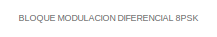
[diagram: root canvas - part 1/4, top center region]
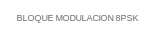
[diagram: root canvas - part 2/4, top left region]
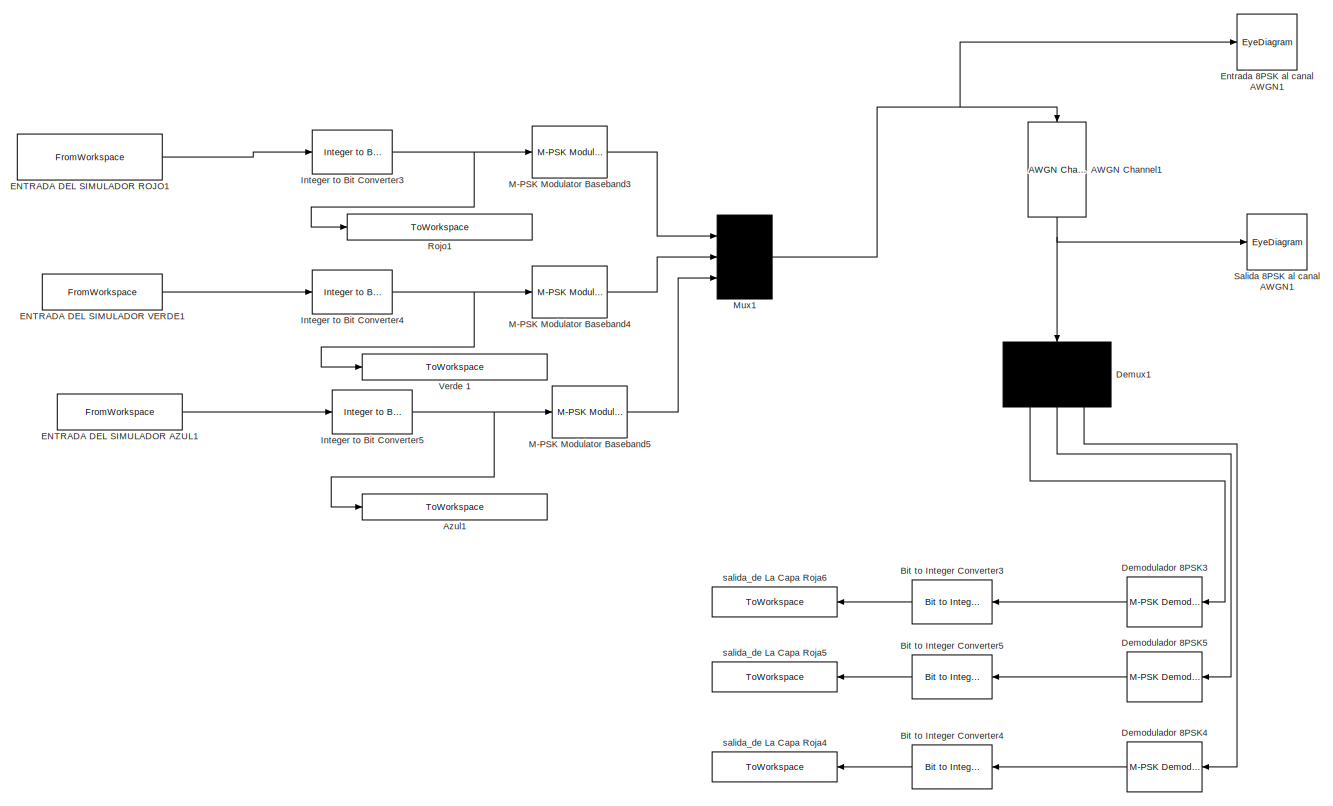
[diagram: root canvas - part 3/4, left side, full height]
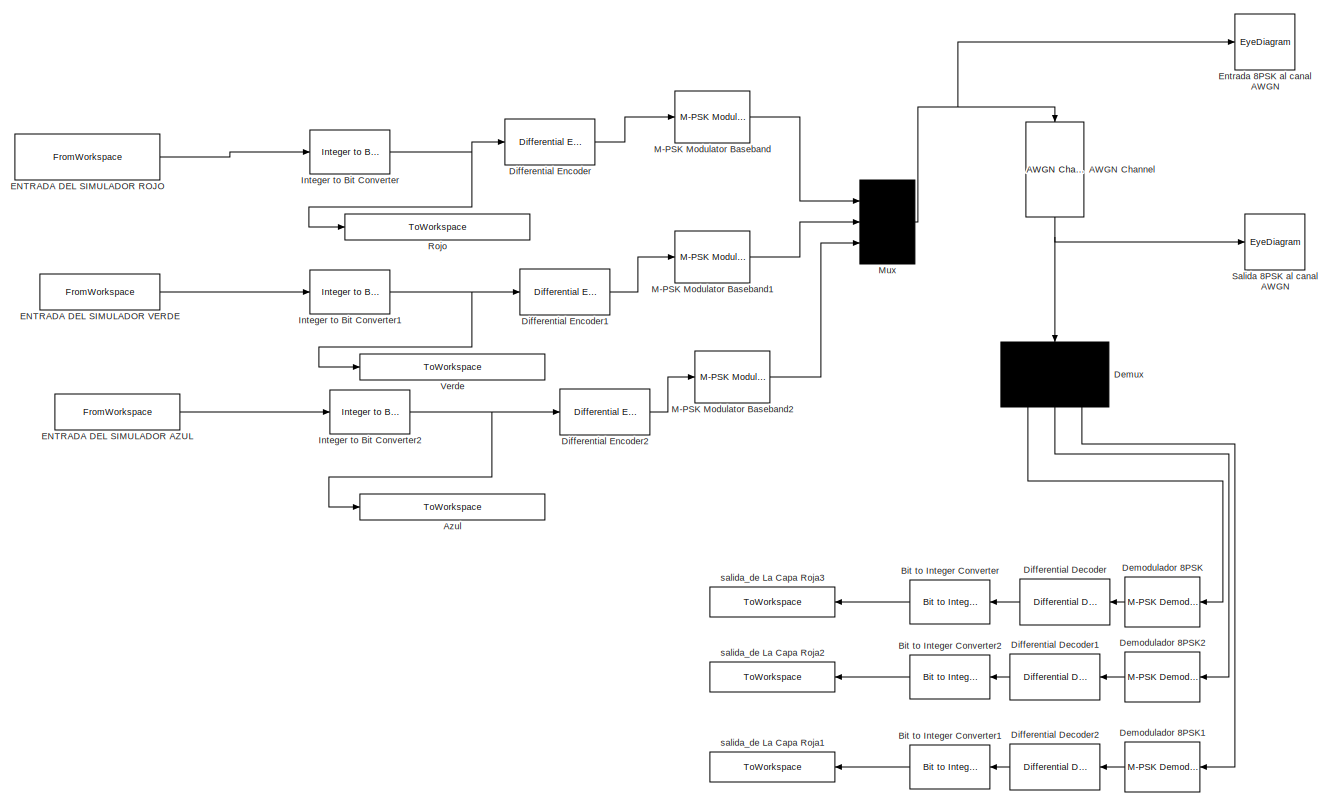
[diagram: root canvas - part 4/4, right side, full height]
MODEL slx_824df2cab368
KIND model
CONFIG AbsTol = auto
CONFIG FixedStep = auto
CONFIG MaxStep = auto
CONFIG MinStep = auto
CONFIG RelTol = 1e-3
CONFIG SampleTimeConstraint = Unconstrained
CONFIG Solver = VariableStepAuto
CONFIG SolverMode = Auto
CONFIG SolverName = VariableStepAuto
CONFIG StartTime = 0.0
CONFIG StopTime = 420800
BLOCK [Reference] AWGN Channel  REF=commchan3/AWGN
Channel
  Ports = [1, 1]
  SourceBlock = commchan3/AWGN\nChannel
  SourceType = AWGN Channel
  UserDataPersistent = on
BLOCK [Reference] AWGN Channel1  REF=commchan3/AWGN
Channel
  Ports = [1, 1]
  SourceBlock = commchan3/AWGN\nChannel
  SourceType = AWGN Channel
  UserDataPersistent = on
BLOCK [ToWorkspace] Azul
  FixptAsFi = on
  MaxDataPoints = inf
  Ports = [1]
  SampleTime = -1
  Save2DSignal = 2-D array (concatenate along first dimension)
  VariableName = Salida_Cuantificador_Azul
BLOCK [ToWorkspace] Azul1
  FixptAsFi = on
  MaxDataPoints = inf
  Ports = [1]
  SampleTime = -1
  Save2DSignal = 2-D array (concatenate along first dimension)
  VariableName = Salida_Cuantificador_Azul1
BLOCK [Reference] Bit to Integer Converter  REF=commutil2/Bit to Integer
Converter
  Ports = [1, 1]
  SourceBlock = commutil2/Bit to Integer\nConverter
  SourceType = Bit to Integer Converter
BLOCK [Reference] Bit to Integer Converter1  REF=commutil2/Bit to Integer
Converter
  Ports = [1, 1]
  SourceBlock = commutil2/Bit to Integer\nConverter
  SourceType = Bit to Integer Converter
BLOCK [Reference] Bit to Integer Converter2  REF=commutil2/Bit to Integer
Converter
  Ports = [1, 1]
  SourceBlock = commutil2/Bit to Integer\nConverter
  SourceType = Bit to Integer Converter
BLOCK [Reference] Bit to Integer Converter3  REF=commutil2/Bit to Integer
Converter
  Ports = [1, 1]
  SourceBlock = commutil2/Bit to Integer\nConverter
  SourceType = Bit to Integer Converter
BLOCK [Reference] Bit to Integer Converter4  REF=commutil2/Bit to Integer
Converter
  Ports = [1, 1]
  SourceBlock = commutil2/Bit to Integer\nConverter
  SourceType = Bit to Integer Converter
BLOCK [Reference] Bit to Integer Converter5  REF=commutil2/Bit to Integer
Converter
  Ports = [1, 1]
  SourceBlock = commutil2/Bit to Integer\nConverter
  SourceType = Bit to Integer Converter
BLOCK [Reference] Demodulador 8PSK  REF=commdigbbndpm3/M-PSK
Demodulator
Baseband
  Ports = [1, 1]
  SourceBlock = commdigbbndpm3/M-PSK\nDemodulator\nBaseband
  SourceType = M-PSK Demodulator Baseband
BLOCK [Reference] Demodulador 8PSK1  REF=commdigbbndpm3/M-PSK
Demodulator
Baseband
  Ports = [1, 1]
  SourceBlock = commdigbbndpm3/M-PSK\nDemodulator\nBaseband
  SourceType = M-PSK Demodulator Baseband
BLOCK [Reference] Demodulador 8PSK2  REF=commdigbbndpm3/M-PSK
Demodulator
Baseband
  Ports = [1, 1]
  SourceBlock = commdigbbndpm3/M-PSK\nDemodulator\nBaseband
  SourceType = M-PSK Demodulator Baseband
BLOCK [Reference] Demodulador 8PSK3  REF=commdigbbndpm3/M-PSK
Demodulator
Baseband
  Ports = [1, 1]
  SourceBlock = commdigbbndpm3/M-PSK\nDemodulator\nBaseband
  SourceType = M-PSK Demodulator Baseband
BLOCK [Reference] Demodulador 8PSK4  REF=commdigbbndpm3/M-PSK
Demodulator
Baseband
  Ports = [1, 1]
  SourceBlock = commdigbbndpm3/M-PSK\nDemodulator\nBaseband
  SourceType = M-PSK Demodulator Baseband
BLOCK [Reference] Demodulador 8PSK5  REF=commdigbbndpm3/M-PSK
Demodulator
Baseband
  Ports = [1, 1]
  SourceBlock = commdigbbndpm3/M-PSK\nDemodulator\nBaseband
  SourceType = M-PSK Demodulator Baseband
BLOCK [Demux] Demux
  Outputs = 3
  Ports = [1, 3]
BLOCK [Demux] Demux1
  Outputs = 3
  Ports = [1, 3]
BLOCK [Reference] Differential Decoder  REF=commsrccod2/Differential
Decoder
  Ports = [1, 1]
  SourceBlock = commsrccod2/Differential\nDecoder
  SourceType = Differential Decoder
BLOCK [Reference] Differential Decoder1  REF=commsrccod2/Differential
Decoder
  Ports = [1, 1]
  SourceBlock = commsrccod2/Differential\nDecoder
  SourceType = Differential Decoder
BLOCK [Reference] Differential Decoder2  REF=commsrccod2/Differential
Decoder
  Ports = [1, 1]
  SourceBlock = commsrccod2/Differential\nDecoder
  SourceType = Differential Decoder
BLOCK [Reference] Differential Encoder  REF=commsrccod2/Differential
Encoder
  Ports = [1, 1]
  SourceBlock = commsrccod2/Differential\nEncoder
  SourceType = Differential Encoder
BLOCK [Reference] Differential Encoder1  REF=commsrccod2/Differential
Encoder
  Ports = [1, 1]
  SourceBlock = commsrccod2/Differential\nEncoder
  SourceType = Differential Encoder
BLOCK [Reference] Differential Encoder2  REF=commsrccod2/Differential
Encoder
  Ports = [1, 1]
  SourceBlock = commsrccod2/Differential\nEncoder
  SourceType = Differential Encoder
BLOCK [FromWorkspace] ENTRADA DEL SIMULADOR AZUL
  OutputAfterFinalValue = Holding final value
  SampleTime = 1
  VariableName = Imagen_BEntrada
BLOCK [FromWorkspace] ENTRADA DEL SIMULADOR AZUL1
  OutputAfterFinalValue = Holding final value
  SampleTime = 1
  VariableName = Imagen_BEntrada
BLOCK [FromWorkspace] ENTRADA DEL SIMULADOR ROJO
  OutputAfterFinalValue = Holding final value
  SampleTime = 1
  VariableName = Imagen_REntrada
BLOCK [FromWorkspace] ENTRADA DEL SIMULADOR ROJO1
  OutputAfterFinalValue = Holding final value
  SampleTime = 1
  VariableName = Imagen_REntrada
BLOCK [FromWorkspace] ENTRADA DEL SIMULADOR VERDE
  OutputAfterFinalValue = Holding final value
  SampleTime = 1
  VariableName = Imagen_GEntrada
BLOCK [FromWorkspace] ENTRADA DEL SIMULADOR VERDE1
  OutputAfterFinalValue = Holding final value
  SampleTime = 1
  VariableName = Imagen_GEntrada
BLOCK [EyeDiagram] Entrada 8PSK al canal AWGN
  Ports = [1]
  ScopeSpecificationString = comm.scopes.EyeDiagramBlockCfg('CurrentConfiguration', extmgr.ConfigurationSet(extmgr.Configuration('Core','General UI',true),extmgr.Configuration('Core','Source UI',true),extmgr.Configuration('Sources','WiredSimulink',true),extmgr.Configuration('Sources','Simulink',false),extmgr.Configuration('Sources','File',false),extmgr.Configuration('Sources','Workspace',false),extmgr.Configuration('Sources',...<+1067ch>
BLOCK [EyeDiagram] Entrada 8PSK al canal AWGN1
  Ports = [1]
  ScopeSpecificationString = comm.scopes.EyeDiagramBlockCfg('CurrentConfiguration', extmgr.ConfigurationSet(extmgr.Configuration('Core','General UI',true),extmgr.Configuration('Core','Source UI',true),extmgr.Configuration('Sources','WiredSimulink',true),extmgr.Configuration('Sources','Simulink',false),extmgr.Configuration('Sources','File',false),extmgr.Configuration('Sources','Workspace',false),extmgr.Configuration('Sources',...<+1067ch>
BLOCK [Reference] Integer to Bit Converter  REF=commutil2/Integer to Bit
Converter
  Ports = [1, 1]
  SourceBlock = commutil2/Integer to Bit\nConverter
  SourceType = Integer to Bit Converter
BLOCK [Reference] Integer to Bit Converter1  REF=commutil2/Integer to Bit
Converter
  Ports = [1, 1]
  SourceBlock = commutil2/Integer to Bit\nConverter
  SourceType = Integer to Bit Converter
BLOCK [Reference] Integer to Bit Converter2  REF=commutil2/Integer to Bit
Converter
  Ports = [1, 1]
  SourceBlock = commutil2/Integer to Bit\nConverter
  SourceType = Integer to Bit Converter
BLOCK [Reference] Integer to Bit Converter3  REF=commutil2/Integer to Bit
Converter
  Ports = [1, 1]
  SourceBlock = commutil2/Integer to Bit\nConverter
  SourceType = Integer to Bit Converter
BLOCK [Reference] Integer to Bit Converter4  REF=commutil2/Integer to Bit
Converter
  Ports = [1, 1]
  SourceBlock = commutil2/Integer to Bit\nConverter
  SourceType = Integer to Bit Converter
BLOCK [Reference] Integer to Bit Converter5  REF=commutil2/Integer to Bit
Converter
  Ports = [1, 1]
  SourceBlock = commutil2/Integer to Bit\nConverter
  SourceType = Integer to Bit Converter
BLOCK [Reference] M-PSK Modulator Baseband  REF=commdigbbndpm3/M-PSK
Modulator
Baseband
  Ports = [1, 1]
  SourceBlock = commdigbbndpm3/M-PSK\nModulator\nBaseband
  SourceType = M-PSK Modulator Baseband
BLOCK [Reference] M-PSK Modulator Baseband1  REF=commdigbbndpm3/M-PSK
Modulator
Baseband
  Ports = [1, 1]
  SourceBlock = commdigbbndpm3/M-PSK\nModulator\nBaseband
  SourceType = M-PSK Modulator Baseband
BLOCK [Reference] M-PSK Modulator Baseband2  REF=commdigbbndpm3/M-PSK
Modulator
Baseband
  Ports = [1, 1]
  SourceBlock = commdigbbndpm3/M-PSK\nModulator\nBaseband
  SourceType = M-PSK Modulator Baseband
BLOCK [Reference] M-PSK Modulator Baseband3  REF=commdigbbndpm3/M-PSK
Modulator
Baseband
  Ports = [1, 1]
  SourceBlock = commdigbbndpm3/M-PSK\nModulator\nBaseband
  SourceType = M-PSK Modulator Baseband
BLOCK [Reference] M-PSK Modulator Baseband4  REF=commdigbbndpm3/M-PSK
Modulator
Baseband
  Ports = [1, 1]
  SourceBlock = commdigbbndpm3/M-PSK\nModulator\nBaseband
  SourceType = M-PSK Modulator Baseband
BLOCK [Reference] M-PSK Modulator Baseband5  REF=commdigbbndpm3/M-PSK
Modulator
Baseband
  Ports = [1, 1]
  SourceBlock = commdigbbndpm3/M-PSK\nModulator\nBaseband
  SourceType = M-PSK Modulator Baseband
BLOCK [Mux] Mux
  DisplayOption = signals
  Inputs = 3
  Ports = [3, 1]
BLOCK [Mux] Mux1
  DisplayOption = signals
  Inputs = 3
  Ports = [3, 1]
BLOCK [ToWorkspace] Rojo
  FixptAsFi = on
  MaxDataPoints = inf
  Ports = [1]
  SampleTime = -1
  Save2DSignal = 2-D array (concatenate along first dimension)
  VariableName = Salida_Cuantificador_Rojo
BLOCK [ToWorkspace] Rojo1
  FixptAsFi = on
  MaxDataPoints = inf
  Ports = [1]
  SampleTime = -1
  Save2DSignal = 2-D array (concatenate along first dimension)
  VariableName = Salida_Cuantificador_Rojo1
BLOCK [EyeDiagram] Salida 8PSK al canal AWGN
  Ports = [1]
  ScopeSpecificationString = comm.scopes.EyeDiagramBlockCfg('CurrentConfiguration', extmgr.ConfigurationSet(extmgr.Configuration('Core','General UI',true),extmgr.Configuration('Core','Source UI',true),extmgr.Configuration('Sources','WiredSimulink',true),extmgr.Configuration('Sources','Simulink',false),extmgr.Configuration('Sources','File',false),extmgr.Configuration('Sources','Workspace',false),extmgr.Configuration('Sources',...<+1066ch>
BLOCK [EyeDiagram] Salida 8PSK al canal AWGN1
  Ports = [1]
  ScopeSpecificationString = comm.scopes.EyeDiagramBlockCfg('CurrentConfiguration', extmgr.ConfigurationSet(extmgr.Configuration('Core','General UI',true),extmgr.Configuration('Core','Source UI',true),extmgr.Configuration('Sources','WiredSimulink',true),extmgr.Configuration('Sources','Simulink',false),extmgr.Configuration('Sources','File',false),extmgr.Configuration('Sources','Workspace',false),extmgr.Configuration('Sources',...<+1066ch>
BLOCK [ToWorkspace] Verde 
  FixptAsFi = on
  MaxDataPoints = inf
  Ports = [1]
  SampleTime = -1
  Save2DSignal = 2-D array (concatenate along first dimension)
  VariableName = Salida_Cuantificador_Verde
BLOCK [ToWorkspace] Verde 1
  FixptAsFi = on
  MaxDataPoints = inf
  Ports = [1]
  SampleTime = -1
  Save2DSignal = 2-D array (concatenate along first dimension)
  VariableName = Salida_Cuantificador_Verde1
BLOCK [ToWorkspace] salida_de La Capa Roja1
  FixptAsFi = on
  MaxDataPoints = inf
  Ports = [1]
  SampleTime = 1
  Save2DSignal = 2-D array (concatenate along first dimension)
  VariableName = IR_DIFF_65_PSKB
BLOCK [ToWorkspace] salida_de La Capa Roja2
  FixptAsFi = on
  MaxDataPoints = inf
  Ports = [1]
  SampleTime = 1
  Save2DSignal = 2-D array (concatenate along first dimension)
  VariableName = IR_DIFF_65_PSKG
BLOCK [ToWorkspace] salida_de La Capa Roja3
  FixptAsFi = on
  MaxDataPoints = inf
  Ports = [1]
  SampleTime = 1
  Save2DSignal = 2-D array (concatenate along first dimension)
  VariableName = IR_DIFF_65_PSKR
BLOCK [ToWorkspace] salida_de La Capa Roja4
  FixptAsFi = on
  MaxDataPoints = inf
  Ports = [1]
  SampleTime = 1
  Save2DSignal = 2-D array (concatenate along first dimension)
  VariableName = IR_65_PSKB
BLOCK [ToWorkspace] salida_de La Capa Roja5
  FixptAsFi = on
  MaxDataPoints = inf
  Ports = [1]
  SampleTime = 1
  Save2DSignal = 2-D array (concatenate along first dimension)
  VariableName = IR_65_PSKG
BLOCK [ToWorkspace] salida_de La Capa Roja6
  FixptAsFi = on
  MaxDataPoints = inf
  Ports = [1]
  SampleTime = 1
  Save2DSignal = 2-D array (concatenate along first dimension)
  VariableName = IR_65_PSKR
ANNOTATION (root): BLOQUE MODULACION DIFERENCIAL 8PSK
ANNOTATION (root): BLOQUE MODULACION 8PSK
NET AWGN Channel1:1 -> Demux1:1, Salida 8PSK al canal AWGN1:1
NET AWGN Channel:1 -> Demux:1, Salida 8PSK al canal AWGN:1
LINE Bit to Integer Converter1:1 -> salida_de La Capa Roja1:1
LINE Bit to Integer Converter2:1 -> salida_de La Capa Roja2:1
LINE Bit to Integer Converter3:1 -> salida_de La Capa Roja6:1
LINE Bit to Integer Converter4:1 -> salida_de La Capa Roja4:1
LINE Bit to Integer Converter5:1 -> salida_de La Capa Roja5:1
LINE Bit to Integer Converter:1 -> salida_de La Capa Roja3:1
LINE Demodulador 8PSK1:1 -> Differential Decoder2:1
LINE Demodulador 8PSK2:1 -> Differential Decoder1:1
LINE Demodulador 8PSK3:1 -> Bit to Integer Converter3:1
LINE Demodulador 8PSK4:1 -> Bit to Integer Converter4:1
LINE Demodulador 8PSK5:1 -> Bit to Integer Converter5:1
LINE Demodulador 8PSK:1 -> Differential Decoder:1
LINE Demux1:1 -> Demodulador 8PSK3:1
LINE Demux1:2 -> Demodulador 8PSK5:1
LINE Demux1:3 -> Demodulador 8PSK4:1
LINE Demux:1 -> Demodulador 8PSK:1
LINE Demux:2 -> Demodulador 8PSK2:1
LINE Demux:3 -> Demodulador 8PSK1:1
LINE Differential Decoder1:1 -> Bit to Integer Converter2:1
LINE Differential Decoder2:1 -> Bit to Integer Converter1:1
LINE Differential Decoder:1 -> Bit to Integer Converter:1
LINE Differential Encoder1:1 -> M-PSK Modulator Baseband1:1
LINE Differential Encoder2:1 -> M-PSK Modulator Baseband2:1
LINE Differential Encoder:1 -> M-PSK Modulator Baseband:1
LINE ENTRADA DEL SIMULADOR AZUL1:1 -> Integer to Bit Converter5:1
LINE ENTRADA DEL SIMULADOR AZUL:1 -> Integer to Bit Converter2:1
LINE ENTRADA DEL SIMULADOR ROJO1:1 -> Integer to Bit Converter3:1
LINE ENTRADA DEL SIMULADOR ROJO:1 -> Integer to Bit Converter:1
LINE ENTRADA DEL SIMULADOR VERDE1:1 -> Integer to Bit Converter4:1
LINE ENTRADA DEL SIMULADOR VERDE:1 -> Integer to Bit Converter1:1
NET Integer to Bit Converter1:1 -> Differential Encoder1:1, Verde :1
NET Integer to Bit Converter2:1 -> Azul:1, Differential Encoder2:1
NET Integer to Bit Converter3:1 -> M-PSK Modulator Baseband3:1, Rojo1:1
NET Integer to Bit Converter4:1 -> M-PSK Modulator Baseband4:1, Verde 1:1
NET Integer to Bit Converter5:1 -> Azul1:1, M-PSK Modulator Baseband5:1
NET Integer to Bit Converter:1 -> Differential Encoder:1, Rojo:1
LINE M-PSK Modulator Baseband1:1 -> Mux:2
LINE M-PSK Modulator Baseband2:1 -> Mux:3
LINE M-PSK Modulator Baseband3:1 -> Mux1:1
LINE M-PSK Modulator Baseband4:1 -> Mux1:2
LINE M-PSK Modulator Baseband5:1 -> Mux1:3
LINE M-PSK Modulator Baseband:1 -> Mux:1
NET Mux1:1 -> AWGN Channel1:1, Entrada 8PSK al canal AWGN1:1
NET Mux:1 -> AWGN Channel:1, Entrada 8PSK al canal AWGN:1
note: NET lines group one-source signal fan-out (src -> all destinations, sorted); 1:1 wires keep LINE
